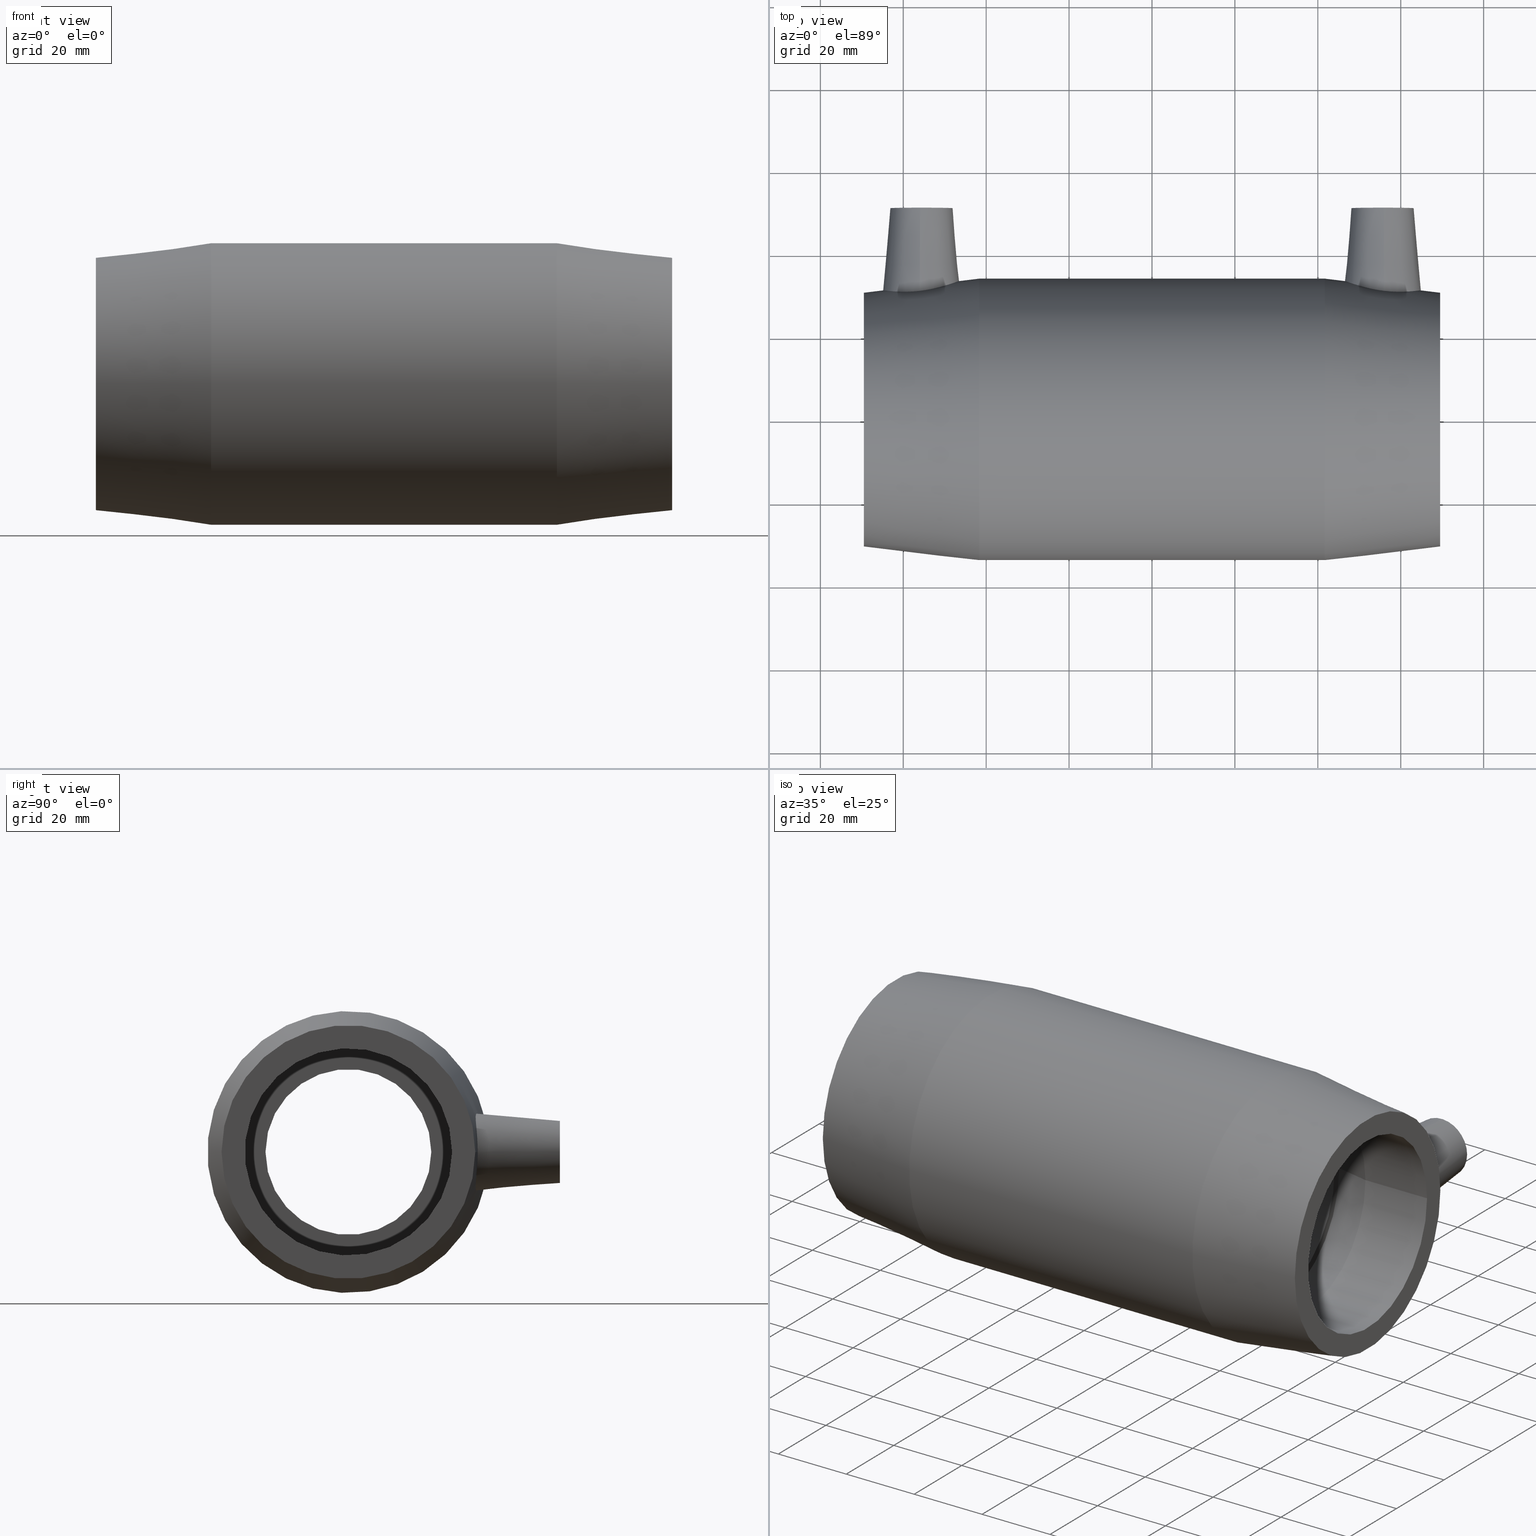
[diagram: canonical four-view strip — front | top / right | iso, engineering-drawing reading convention]
A machine part, canonical four-view strip (front | top / right | iso — engineering-drawing reading convention). The complete STEP part file that produces these views, byte-faithful:
ISO-10303-21;
HEADER;
/* Generated by software containing ST-Developer
 * from STEP Tools, Inc. (www.steptools.com) 
 */

FILE_DESCRIPTION(
/* description */ ('PLASSON LONG COUPLER 50'),
/* implementation_level */ '2;1');

FILE_NAME(
/* name */ 
'C:\\Dropbox\\KIMPROJECTS-Inventor\\99-16-3568-Processing\\ElectroFusi
on Fittings\\4901L4\\4901L4050.ipt.stp',
/* time_stamp */ '2017-11-06T09:11:06+02:00',
/* author */ ('KIM'),
/* organization */ (''),
/* preprocessor_version */ 'ST-DEVELOPER v15.6',
/* originating_system */ 'Autodesk Inventor 2015',
/* authorisation */ '');

FILE_SCHEMA (('AUTOMOTIVE_DESIGN { 1 0 10303 214 3 1 1 }'));
ENDSEC;

DATA;
#10=MECHANICAL_DESIGN_GEOMETRIC_PRESENTATION_REPRESENTATION('',(#13),#643);
#11=SHAPE_REPRESENTATION_RELATIONSHIP('SRR','None',#652,#12);
#12=ADVANCED_BREP_SHAPE_REPRESENTATION($,(#14),#642);
#13=STYLED_ITEM('',(#661),#14);
#14=MANIFOLD_SOLID_BREP('Solid1',#323);
#15=B_SPLINE_CURVE_WITH_KNOTS('',3,(#521,#522,#523,#524,#525,#526,#527,
#528,#529,#530,#531,#532,#533,#534,#535,#536,#537,#538,#539,#540,#541,#542,
#543,#544,#545,#546,#547,#548,#549,#550,#551,#552,#553,#554),
 .UNSPECIFIED.,.T.,.F.,(4,2,2,2,2,2,2,2,2,2,2,2,2,2,2,2,4),(0.,0.364856590834761,
0.729713181669521,1.08597432023197,1.44223545879442,1.79849659735688,2.15475773591933,
2.51961432675409,2.88447091758885,3.22228251719108,3.56009411679331,3.90054940818424,
4.24100469957517,4.5814599909661,4.92191528235703,5.25972688195927,5.5975384815615),
 .UNSPECIFIED.);
#16=B_SPLINE_CURVE_WITH_KNOTS('',3,(#558,#559,#560,#561,#562,#563,#564,
#565,#566,#567,#568,#569,#570,#571,#572,#573,#574,#575,#576,#577,#578,#579,
#580,#581,#582,#583,#584,#585,#586,#587,#588,#589,#590,#591),
 .UNSPECIFIED.,.T.,.F.,(4,2,2,2,2,2,2,2,2,2,2,2,2,2,2,2,4),(0.,0.337811599602233,
0.675623199204467,1.0160784905954,1.35653378198633,1.69698907337726,2.03744436476819,
2.37525596437042,2.71306756397265,3.07792415480741,3.44278074564218,3.79904188420463,
4.15530302276708,4.51156416132953,4.86782529989198,5.23268189072674,5.5975384815615),
 .UNSPECIFIED.);
#17=CONICAL_SURFACE('',#343,7.5,5.);
#18=CONICAL_SURFACE('',#346,7.5,5.);
#19=CONICAL_SURFACE('',#350,32.3,6.97276928602646);
#20=CONICAL_SURFACE('',#356,25.9635897462374,12.);
#21=CONICAL_SURFACE('',#372,25.9635897462374,12.);
#22=CONICAL_SURFACE('',#378,32.3,6.97276928602646);
#23=FACE_BOUND('',#91,.T.);
#24=FACE_BOUND('',#93,.T.);
#25=FACE_BOUND('',#95,.T.);
#26=FACE_BOUND('',#98,.T.);
#27=FACE_BOUND('',#100,.T.);
#28=FACE_BOUND('',#102,.T.);
#29=FACE_BOUND('',#104,.T.);
#30=FACE_BOUND('',#106,.T.);
#31=FACE_BOUND('',#108,.T.);
#32=FACE_BOUND('',#110,.T.);
#33=FACE_BOUND('',#112,.T.);
#34=FACE_BOUND('',#114,.T.);
#35=FACE_BOUND('',#115,.T.);
#36=FACE_BOUND('',#117,.T.);
#37=FACE_BOUND('',#119,.T.);
#38=FACE_BOUND('',#121,.T.);
#39=FACE_BOUND('',#123,.T.);
#40=FACE_BOUND('',#125,.T.);
#41=FACE_BOUND('',#127,.T.);
#42=FACE_BOUND('',#129,.T.);
#43=FACE_BOUND('',#131,.T.);
#44=FACE_BOUND('',#133,.T.);
#45=FACE_BOUND('',#135,.T.);
#46=FACE_BOUND('',#137,.T.);
#47=FACE_BOUND('',#139,.T.);
#48=FACE_BOUND('',#141,.T.);
#49=FACE_BOUND('',#143,.T.);
#50=FACE_BOUND('',#144,.T.);
#51=CYLINDRICAL_SURFACE('',#327,2.);
#52=CYLINDRICAL_SURFACE('',#329,5.);
#53=CYLINDRICAL_SURFACE('',#335,2.);
#54=CYLINDRICAL_SURFACE('',#337,5.);
#55=CYLINDRICAL_SURFACE('',#347,34.);
#56=CYLINDRICAL_SURFACE('',#354,25.);
#57=CYLINDRICAL_SURFACE('',#360,25.);
#58=CYLINDRICAL_SURFACE('',#364,20.);
#59=CYLINDRICAL_SURFACE('',#368,25.);
#60=CYLINDRICAL_SURFACE('',#374,25.);
#61=FACE_OUTER_BOUND('',#89,.T.);
#62=FACE_OUTER_BOUND('',#90,.T.);
#63=FACE_OUTER_BOUND('',#92,.T.);
#64=FACE_OUTER_BOUND('',#94,.T.);
#65=FACE_OUTER_BOUND('',#96,.T.);
#66=FACE_OUTER_BOUND('',#97,.T.);
#67=FACE_OUTER_BOUND('',#99,.T.);
#68=FACE_OUTER_BOUND('',#101,.T.);
#69=FACE_OUTER_BOUND('',#103,.T.);
#70=FACE_OUTER_BOUND('',#105,.T.);
#71=FACE_OUTER_BOUND('',#107,.T.);
#72=FACE_OUTER_BOUND('',#109,.T.);
#73=FACE_OUTER_BOUND('',#111,.T.);
#74=FACE_OUTER_BOUND('',#113,.T.);
#75=FACE_OUTER_BOUND('',#116,.T.);
#76=FACE_OUTER_BOUND('',#118,.T.);
#77=FACE_OUTER_BOUND('',#120,.T.);
#78=FACE_OUTER_BOUND('',#122,.T.);
#79=FACE_OUTER_BOUND('',#124,.T.);
#80=FACE_OUTER_BOUND('',#126,.T.);
#81=FACE_OUTER_BOUND('',#128,.T.);
#82=FACE_OUTER_BOUND('',#130,.T.);
#83=FACE_OUTER_BOUND('',#132,.T.);
#84=FACE_OUTER_BOUND('',#134,.T.);
#85=FACE_OUTER_BOUND('',#136,.T.);
#86=FACE_OUTER_BOUND('',#138,.T.);
#87=FACE_OUTER_BOUND('',#140,.T.);
#88=FACE_OUTER_BOUND('',#142,.T.);
#89=EDGE_LOOP('',(#227));
#90=EDGE_LOOP('',(#228));
#91=EDGE_LOOP('',(#229));
#92=EDGE_LOOP('',(#230));
#93=EDGE_LOOP('',(#231));
#94=EDGE_LOOP('',(#232));
#95=EDGE_LOOP('',(#233));
#96=EDGE_LOOP('',(#234));
#97=EDGE_LOOP('',(#235));
#98=EDGE_LOOP('',(#236));
#99=EDGE_LOOP('',(#237));
#100=EDGE_LOOP('',(#238));
#101=EDGE_LOOP('',(#239));
#102=EDGE_LOOP('',(#240));
#103=EDGE_LOOP('',(#241));
#104=EDGE_LOOP('',(#242));
#105=EDGE_LOOP('',(#243));
#106=EDGE_LOOP('',(#244));
#107=EDGE_LOOP('',(#245));
#108=EDGE_LOOP('',(#246));
#109=EDGE_LOOP('',(#247));
#110=EDGE_LOOP('',(#248));
#111=EDGE_LOOP('',(#249));
#112=EDGE_LOOP('',(#250));
#113=EDGE_LOOP('',(#251));
#114=EDGE_LOOP('',(#252));
#115=EDGE_LOOP('',(#253));
#116=EDGE_LOOP('',(#254));
#117=EDGE_LOOP('',(#255));
#118=EDGE_LOOP('',(#256));
#119=EDGE_LOOP('',(#257));
#120=EDGE_LOOP('',(#258));
#121=EDGE_LOOP('',(#259));
#122=EDGE_LOOP('',(#260));
#123=EDGE_LOOP('',(#261));
#124=EDGE_LOOP('',(#262));
#125=EDGE_LOOP('',(#263));
#126=EDGE_LOOP('',(#264));
#127=EDGE_LOOP('',(#265));
#128=EDGE_LOOP('',(#266));
#129=EDGE_LOOP('',(#267));
#130=EDGE_LOOP('',(#268));
#131=EDGE_LOOP('',(#269));
#132=EDGE_LOOP('',(#270));
#133=EDGE_LOOP('',(#271));
#134=EDGE_LOOP('',(#272));
#135=EDGE_LOOP('',(#273));
#136=EDGE_LOOP('',(#274));
#137=EDGE_LOOP('',(#275));
#138=EDGE_LOOP('',(#276));
#139=EDGE_LOOP('',(#277));
#140=EDGE_LOOP('',(#278));
#141=EDGE_LOOP('',(#279));
#142=EDGE_LOOP('',(#280));
#143=EDGE_LOOP('',(#281));
#144=EDGE_LOOP('',(#282));
#145=CIRCLE('',#326,2.);
#146=CIRCLE('',#328,2.);
#147=CIRCLE('',#330,5.);
#148=CIRCLE('',#331,5.);
#149=CIRCLE('',#334,2.);
#150=CIRCLE('',#336,2.);
#151=CIRCLE('',#338,5.);
#152=CIRCLE('',#339,5.);
#153=CIRCLE('',#342,7.5);
#154=CIRCLE('',#344,7.5);
#155=CIRCLE('',#348,34.);
#156=CIRCLE('',#349,34.);
#157=CIRCLE('',#351,30.6);
#158=CIRCLE('',#353,25.);
#159=CIRCLE('',#355,25.);
#160=CIRCLE('',#357,26.9271794924749);
#161=CIRCLE('',#359,25.);
#162=CIRCLE('',#361,25.);
#163=CIRCLE('',#363,20.);
#164=CIRCLE('',#365,20.);
#165=CIRCLE('',#367,25.);
#166=CIRCLE('',#369,25.);
#167=CIRCLE('',#371,26.9271794924749);
#168=CIRCLE('',#373,25.);
#169=CIRCLE('',#375,25.);
#170=CIRCLE('',#377,30.6);
#171=VERTEX_POINT('',#491);
#172=VERTEX_POINT('',#494);
#173=VERTEX_POINT('',#497);
#174=VERTEX_POINT('',#499);
#175=VERTEX_POINT('',#503);
#176=VERTEX_POINT('',#506);
#177=VERTEX_POINT('',#509);
#178=VERTEX_POINT('',#511);
#179=VERTEX_POINT('',#515);
#180=VERTEX_POINT('',#518);
#181=VERTEX_POINT('',#520);
#182=VERTEX_POINT('',#557);
#183=VERTEX_POINT('',#593);
#184=VERTEX_POINT('',#595);
#185=VERTEX_POINT('',#598);
#186=VERTEX_POINT('',#601);
#187=VERTEX_POINT('',#604);
#188=VERTEX_POINT('',#607);
#189=VERTEX_POINT('',#610);
#190=VERTEX_POINT('',#613);
#191=VERTEX_POINT('',#616);
#192=VERTEX_POINT('',#619);
#193=VERTEX_POINT('',#622);
#194=VERTEX_POINT('',#625);
#195=VERTEX_POINT('',#628);
#196=VERTEX_POINT('',#631);
#197=VERTEX_POINT('',#634);
#198=VERTEX_POINT('',#637);
#199=EDGE_CURVE('',#171,#171,#145,.T.);
#200=EDGE_CURVE('',#172,#172,#146,.T.);
#201=EDGE_CURVE('',#173,#173,#147,.T.);
#202=EDGE_CURVE('',#174,#174,#148,.T.);
#203=EDGE_CURVE('',#175,#175,#149,.T.);
#204=EDGE_CURVE('',#176,#176,#150,.T.);
#205=EDGE_CURVE('',#177,#177,#151,.T.);
#206=EDGE_CURVE('',#178,#178,#152,.T.);
#207=EDGE_CURVE('',#179,#179,#153,.T.);
#208=EDGE_CURVE('',#180,#180,#154,.T.);
#209=EDGE_CURVE('',#181,#181,#15,.T.);
#210=EDGE_CURVE('',#182,#182,#16,.T.);
#211=EDGE_CURVE('',#183,#183,#155,.T.);
#212=EDGE_CURVE('',#184,#184,#156,.T.);
#213=EDGE_CURVE('',#185,#185,#157,.T.);
#214=EDGE_CURVE('',#186,#186,#158,.T.);
#215=EDGE_CURVE('',#187,#187,#159,.T.);
#216=EDGE_CURVE('',#188,#188,#160,.T.);
#217=EDGE_CURVE('',#189,#189,#161,.T.);
#218=EDGE_CURVE('',#190,#190,#162,.T.);
#219=EDGE_CURVE('',#191,#191,#163,.T.);
#220=EDGE_CURVE('',#192,#192,#164,.T.);
#221=EDGE_CURVE('',#193,#193,#165,.T.);
#222=EDGE_CURVE('',#194,#194,#166,.T.);
#223=EDGE_CURVE('',#195,#195,#167,.T.);
#224=EDGE_CURVE('',#196,#196,#168,.T.);
#225=EDGE_CURVE('',#197,#197,#169,.T.);
#226=EDGE_CURVE('',#198,#198,#170,.T.);
#227=ORIENTED_EDGE('',*,*,#199,.F.);
#228=ORIENTED_EDGE('',*,*,#199,.T.);
#229=ORIENTED_EDGE('',*,*,#200,.F.);
#230=ORIENTED_EDGE('',*,*,#201,.F.);
#231=ORIENTED_EDGE('',*,*,#202,.F.);
#232=ORIENTED_EDGE('',*,*,#201,.T.);
#233=ORIENTED_EDGE('',*,*,#200,.T.);
#234=ORIENTED_EDGE('',*,*,#203,.F.);
#235=ORIENTED_EDGE('',*,*,#203,.T.);
#236=ORIENTED_EDGE('',*,*,#204,.T.);
#237=ORIENTED_EDGE('',*,*,#205,.T.);
#238=ORIENTED_EDGE('',*,*,#206,.F.);
#239=ORIENTED_EDGE('',*,*,#205,.F.);
#240=ORIENTED_EDGE('',*,*,#204,.F.);
#241=ORIENTED_EDGE('',*,*,#207,.F.);
#242=ORIENTED_EDGE('',*,*,#206,.T.);
#243=ORIENTED_EDGE('',*,*,#208,.F.);
#244=ORIENTED_EDGE('',*,*,#209,.F.);
#245=ORIENTED_EDGE('',*,*,#208,.T.);
#246=ORIENTED_EDGE('',*,*,#202,.T.);
#247=ORIENTED_EDGE('',*,*,#207,.T.);
#248=ORIENTED_EDGE('',*,*,#210,.F.);
#249=ORIENTED_EDGE('',*,*,#211,.F.);
#250=ORIENTED_EDGE('',*,*,#212,.T.);
#251=ORIENTED_EDGE('',*,*,#213,.F.);
#252=ORIENTED_EDGE('',*,*,#209,.T.);
#253=ORIENTED_EDGE('',*,*,#211,.T.);
#254=ORIENTED_EDGE('',*,*,#213,.T.);
#255=ORIENTED_EDGE('',*,*,#214,.F.);
#256=ORIENTED_EDGE('',*,*,#215,.F.);
#257=ORIENTED_EDGE('',*,*,#214,.T.);
#258=ORIENTED_EDGE('',*,*,#216,.F.);
#259=ORIENTED_EDGE('',*,*,#215,.T.);
#260=ORIENTED_EDGE('',*,*,#216,.T.);
#261=ORIENTED_EDGE('',*,*,#217,.F.);
#262=ORIENTED_EDGE('',*,*,#218,.F.);
#263=ORIENTED_EDGE('',*,*,#217,.T.);
#264=ORIENTED_EDGE('',*,*,#218,.T.);
#265=ORIENTED_EDGE('',*,*,#219,.F.);
#266=ORIENTED_EDGE('',*,*,#220,.F.);
#267=ORIENTED_EDGE('',*,*,#219,.T.);
#268=ORIENTED_EDGE('',*,*,#221,.F.);
#269=ORIENTED_EDGE('',*,*,#220,.T.);
#270=ORIENTED_EDGE('',*,*,#222,.F.);
#271=ORIENTED_EDGE('',*,*,#221,.T.);
#272=ORIENTED_EDGE('',*,*,#223,.F.);
#273=ORIENTED_EDGE('',*,*,#222,.T.);
#274=ORIENTED_EDGE('',*,*,#224,.F.);
#275=ORIENTED_EDGE('',*,*,#223,.T.);
#276=ORIENTED_EDGE('',*,*,#225,.F.);
#277=ORIENTED_EDGE('',*,*,#224,.T.);
#278=ORIENTED_EDGE('',*,*,#226,.F.);
#279=ORIENTED_EDGE('',*,*,#225,.T.);
#280=ORIENTED_EDGE('',*,*,#212,.F.);
#281=ORIENTED_EDGE('',*,*,#210,.T.);
#282=ORIENTED_EDGE('',*,*,#226,.T.);
#283=PLANE('',#325);
#284=PLANE('',#332);
#285=PLANE('',#333);
#286=PLANE('',#340);
#287=PLANE('',#341);
#288=PLANE('',#345);
#289=PLANE('',#352);
#290=PLANE('',#358);
#291=PLANE('',#362);
#292=PLANE('',#366);
#293=PLANE('',#370);
#294=PLANE('',#376);
#295=ADVANCED_FACE('',(#61),#283,.F.);
#296=ADVANCED_FACE('',(#62,#23),#51,.T.);
#297=ADVANCED_FACE('',(#63,#24),#52,.F.);
#298=ADVANCED_FACE('',(#64,#25),#284,.F.);
#299=ADVANCED_FACE('',(#65),#285,.T.);
#300=ADVANCED_FACE('',(#66,#26),#53,.T.);
#301=ADVANCED_FACE('',(#67,#27),#54,.F.);
#302=ADVANCED_FACE('',(#68,#28),#286,.T.);
#303=ADVANCED_FACE('',(#69,#29),#287,.T.);
#304=ADVANCED_FACE('',(#70,#30),#17,.T.);
#305=ADVANCED_FACE('',(#71,#31),#288,.F.);
#306=ADVANCED_FACE('',(#72,#32),#18,.T.);
#307=ADVANCED_FACE('',(#73,#33),#55,.T.);
#308=ADVANCED_FACE('',(#74,#34,#35),#19,.T.);
#309=ADVANCED_FACE('',(#75,#36),#289,.T.);
#310=ADVANCED_FACE('',(#76,#37),#56,.F.);
#311=ADVANCED_FACE('',(#77,#38),#20,.F.);
#312=ADVANCED_FACE('',(#78,#39),#290,.T.);
#313=ADVANCED_FACE('',(#79,#40),#57,.F.);
#314=ADVANCED_FACE('',(#80,#41),#291,.T.);
#315=ADVANCED_FACE('',(#81,#42),#58,.F.);
#316=ADVANCED_FACE('',(#82,#43),#292,.T.);
#317=ADVANCED_FACE('',(#83,#44),#59,.F.);
#318=ADVANCED_FACE('',(#84,#45),#293,.T.);
#319=ADVANCED_FACE('',(#85,#46),#21,.F.);
#320=ADVANCED_FACE('',(#86,#47),#60,.F.);
#321=ADVANCED_FACE('',(#87,#48),#294,.T.);
#322=ADVANCED_FACE('',(#88,#49,#50),#22,.T.);
#323=CLOSED_SHELL('',(#295,#296,#297,#298,#299,#300,#301,#302,#303,#304,
#305,#306,#307,#308,#309,#310,#311,#312,#313,#314,#315,#316,#317,#318,#319,
#320,#321,#322));
#324=AXIS2_PLACEMENT_3D('placement',#489,#379,#380);
#325=AXIS2_PLACEMENT_3D('',#490,#381,#382);
#326=AXIS2_PLACEMENT_3D('',#492,#383,#384);
#327=AXIS2_PLACEMENT_3D('',#493,#385,#386);
#328=AXIS2_PLACEMENT_3D('',#495,#387,#388);
#329=AXIS2_PLACEMENT_3D('',#496,#389,#390);
#330=AXIS2_PLACEMENT_3D('',#498,#391,#392);
#331=AXIS2_PLACEMENT_3D('',#500,#393,#394);
#332=AXIS2_PLACEMENT_3D('',#501,#395,#396);
#333=AXIS2_PLACEMENT_3D('',#502,#397,#398);
#334=AXIS2_PLACEMENT_3D('',#504,#399,#400);
#335=AXIS2_PLACEMENT_3D('',#505,#401,#402);
#336=AXIS2_PLACEMENT_3D('',#507,#403,#404);
#337=AXIS2_PLACEMENT_3D('',#508,#405,#406);
#338=AXIS2_PLACEMENT_3D('',#510,#407,#408);
#339=AXIS2_PLACEMENT_3D('',#512,#409,#410);
#340=AXIS2_PLACEMENT_3D('',#513,#411,#412);
#341=AXIS2_PLACEMENT_3D('',#514,#413,#414);
#342=AXIS2_PLACEMENT_3D('',#516,#415,#416);
#343=AXIS2_PLACEMENT_3D('',#517,#417,#418);
#344=AXIS2_PLACEMENT_3D('',#519,#419,#420);
#345=AXIS2_PLACEMENT_3D('',#555,#421,#422);
#346=AXIS2_PLACEMENT_3D('',#556,#423,#424);
#347=AXIS2_PLACEMENT_3D('',#592,#425,#426);
#348=AXIS2_PLACEMENT_3D('',#594,#427,#428);
#349=AXIS2_PLACEMENT_3D('',#596,#429,#430);
#350=AXIS2_PLACEMENT_3D('',#597,#431,#432);
#351=AXIS2_PLACEMENT_3D('',#599,#433,#434);
#352=AXIS2_PLACEMENT_3D('',#600,#435,#436);
#353=AXIS2_PLACEMENT_3D('',#602,#437,#438);
#354=AXIS2_PLACEMENT_3D('',#603,#439,#440);
#355=AXIS2_PLACEMENT_3D('',#605,#441,#442);
#356=AXIS2_PLACEMENT_3D('',#606,#443,#444);
#357=AXIS2_PLACEMENT_3D('',#608,#445,#446);
#358=AXIS2_PLACEMENT_3D('',#609,#447,#448);
#359=AXIS2_PLACEMENT_3D('',#611,#449,#450);
#360=AXIS2_PLACEMENT_3D('',#612,#451,#452);
#361=AXIS2_PLACEMENT_3D('',#614,#453,#454);
#362=AXIS2_PLACEMENT_3D('',#615,#455,#456);
#363=AXIS2_PLACEMENT_3D('',#617,#457,#458);
#364=AXIS2_PLACEMENT_3D('',#618,#459,#460);
#365=AXIS2_PLACEMENT_3D('',#620,#461,#462);
#366=AXIS2_PLACEMENT_3D('',#621,#463,#464);
#367=AXIS2_PLACEMENT_3D('',#623,#465,#466);
#368=AXIS2_PLACEMENT_3D('',#624,#467,#468);
#369=AXIS2_PLACEMENT_3D('',#626,#469,#470);
#370=AXIS2_PLACEMENT_3D('',#627,#471,#472);
#371=AXIS2_PLACEMENT_3D('',#629,#473,#474);
#372=AXIS2_PLACEMENT_3D('',#630,#475,#476);
#373=AXIS2_PLACEMENT_3D('',#632,#477,#478);
#374=AXIS2_PLACEMENT_3D('',#633,#479,#480);
#375=AXIS2_PLACEMENT_3D('',#635,#481,#482);
#376=AXIS2_PLACEMENT_3D('',#636,#483,#484);
#377=AXIS2_PLACEMENT_3D('',#638,#485,#486);
#378=AXIS2_PLACEMENT_3D('',#639,#487,#488);
#379=DIRECTION('axis',(0.,0.,1.));
#380=DIRECTION('refdir',(1.,0.,0.));
#381=DIRECTION('center_axis',(0.,-1.,0.));
#382=DIRECTION('ref_axis',(0.,0.,1.));
#383=DIRECTION('center_axis',(0.,-1.,0.));
#384=DIRECTION('ref_axis',(1.,0.,0.));
#385=DIRECTION('center_axis',(0.,1.,0.));
#386=DIRECTION('ref_axis',(1.,0.,0.));
#387=DIRECTION('center_axis',(0.,-1.,0.));
#388=DIRECTION('ref_axis',(1.,0.,0.));
#389=DIRECTION('center_axis',(0.,1.,0.));
#390=DIRECTION('ref_axis',(1.,0.,0.));
#391=DIRECTION('center_axis',(0.,1.,0.));
#392=DIRECTION('ref_axis',(1.,0.,0.));
#393=DIRECTION('center_axis',(0.,-1.,0.));
#394=DIRECTION('ref_axis',(1.,0.,0.));
#395=DIRECTION('center_axis',(0.,-1.,0.));
#396=DIRECTION('ref_axis',(0.,0.,1.));
#397=DIRECTION('center_axis',(0.,1.,0.));
#398=DIRECTION('ref_axis',(0.,0.,1.));
#399=DIRECTION('center_axis',(0.,-1.,0.));
#400=DIRECTION('ref_axis',(-1.,0.,0.));
#401=DIRECTION('center_axis',(0.,-1.,0.));
#402=DIRECTION('ref_axis',(-1.,0.,0.));
#403=DIRECTION('center_axis',(0.,1.,0.));
#404=DIRECTION('ref_axis',(-1.,0.,0.));
#405=DIRECTION('center_axis',(0.,-1.,0.));
#406=DIRECTION('ref_axis',(-1.,0.,0.));
#407=DIRECTION('center_axis',(0.,-1.,0.));
#408=DIRECTION('ref_axis',(-1.,0.,0.));
#409=DIRECTION('center_axis',(0.,-1.,0.));
#410=DIRECTION('ref_axis',(-1.,0.,0.));
#411=DIRECTION('center_axis',(0.,1.,0.));
#412=DIRECTION('ref_axis',(0.,0.,1.));
#413=DIRECTION('center_axis',(0.,1.,0.));
#414=DIRECTION('ref_axis',(0.,0.,1.));
#415=DIRECTION('center_axis',(0.,-1.,0.));
#416=DIRECTION('ref_axis',(1.,0.,0.));
#417=DIRECTION('center_axis',(0.,-1.,0.));
#418=DIRECTION('ref_axis',(-1.,0.,0.));
#419=DIRECTION('center_axis',(0.,1.,0.));
#420=DIRECTION('ref_axis',(-1.,0.,0.));
#421=DIRECTION('center_axis',(0.,-1.,0.));
#422=DIRECTION('ref_axis',(0.,0.,1.));
#423=DIRECTION('center_axis',(0.,-1.,0.));
#424=DIRECTION('ref_axis',(1.,0.,0.));
#425=DIRECTION('center_axis',(1.,0.,0.));
#426=DIRECTION('ref_axis',(0.,1.,0.));
#427=DIRECTION('center_axis',(1.,0.,0.));
#428=DIRECTION('ref_axis',(0.,0.,-1.));
#429=DIRECTION('center_axis',(1.,0.,0.));
#430=DIRECTION('ref_axis',(0.,0.,-1.));
#431=DIRECTION('center_axis',(-1.,0.,0.));
#432=DIRECTION('ref_axis',(0.,1.,0.));
#433=DIRECTION('center_axis',(1.,0.,0.));
#434=DIRECTION('ref_axis',(0.,0.,-1.));
#435=DIRECTION('center_axis',(1.,0.,0.));
#436=DIRECTION('ref_axis',(0.,0.,-1.));
#437=DIRECTION('center_axis',(1.,0.,0.));
#438=DIRECTION('ref_axis',(0.,0.,-1.));
#439=DIRECTION('center_axis',(1.,0.,0.));
#440=DIRECTION('ref_axis',(0.,1.,0.));
#441=DIRECTION('center_axis',(1.,0.,0.));
#442=DIRECTION('ref_axis',(0.,0.,-1.));
#443=DIRECTION('center_axis',(-1.,0.,0.));
#444=DIRECTION('ref_axis',(0.,1.,0.));
#445=DIRECTION('center_axis',(1.,0.,0.));
#446=DIRECTION('ref_axis',(0.,0.,-1.));
#447=DIRECTION('center_axis',(1.,0.,0.));
#448=DIRECTION('ref_axis',(0.,0.,-1.));
#449=DIRECTION('center_axis',(1.,0.,0.));
#450=DIRECTION('ref_axis',(0.,0.,-1.));
#451=DIRECTION('center_axis',(1.,0.,0.));
#452=DIRECTION('ref_axis',(0.,1.,0.));
#453=DIRECTION('center_axis',(1.,0.,0.));
#454=DIRECTION('ref_axis',(0.,0.,-1.));
#455=DIRECTION('center_axis',(1.,0.,0.));
#456=DIRECTION('ref_axis',(0.,0.,-1.));
#457=DIRECTION('center_axis',(1.,0.,0.));
#458=DIRECTION('ref_axis',(0.,0.,-1.));
#459=DIRECTION('center_axis',(1.,0.,0.));
#460=DIRECTION('ref_axis',(0.,1.,0.));
#461=DIRECTION('center_axis',(1.,0.,0.));
#462=DIRECTION('ref_axis',(0.,0.,-1.));
#463=DIRECTION('center_axis',(-1.,0.,0.));
#464=DIRECTION('ref_axis',(0.,0.,1.));
#465=DIRECTION('center_axis',(1.,0.,0.));
#466=DIRECTION('ref_axis',(0.,0.,-1.));
#467=DIRECTION('center_axis',(1.,0.,0.));
#468=DIRECTION('ref_axis',(0.,1.,0.));
#469=DIRECTION('center_axis',(1.,0.,0.));
#470=DIRECTION('ref_axis',(0.,0.,-1.));
#471=DIRECTION('center_axis',(-1.,0.,0.));
#472=DIRECTION('ref_axis',(0.,0.,1.));
#473=DIRECTION('center_axis',(1.,0.,0.));
#474=DIRECTION('ref_axis',(0.,0.,-1.));
#475=DIRECTION('center_axis',(1.,0.,0.));
#476=DIRECTION('ref_axis',(0.,1.,0.));
#477=DIRECTION('center_axis',(1.,0.,0.));
#478=DIRECTION('ref_axis',(0.,0.,-1.));
#479=DIRECTION('center_axis',(1.,0.,0.));
#480=DIRECTION('ref_axis',(0.,1.,0.));
#481=DIRECTION('center_axis',(1.,0.,0.));
#482=DIRECTION('ref_axis',(0.,0.,-1.));
#483=DIRECTION('center_axis',(-1.,0.,0.));
#484=DIRECTION('ref_axis',(0.,0.,1.));
#485=DIRECTION('center_axis',(1.,0.,0.));
#486=DIRECTION('ref_axis',(0.,0.,-1.));
#487=DIRECTION('center_axis',(1.,0.,0.));
#488=DIRECTION('ref_axis',(0.,1.,0.));
#489=CARTESIAN_POINT('',(0.,0.,0.));
#490=CARTESIAN_POINT('Origin',(55.6,48.,0.));
#491=CARTESIAN_POINT('',(53.6,48.,-2.44929359829471E-16));
#492=CARTESIAN_POINT('Origin',(55.6,48.,0.));
#493=CARTESIAN_POINT('Origin',(55.6,51.,0.));
#494=CARTESIAN_POINT('',(53.6,37.,-2.44929359829471E-16));
#495=CARTESIAN_POINT('Origin',(55.6,37.,0.));
#496=CARTESIAN_POINT('Origin',(55.6,51.,0.));
#497=CARTESIAN_POINT('',(50.6,37.,-6.12323399573677E-16));
#498=CARTESIAN_POINT('Origin',(55.6,37.,0.));
#499=CARTESIAN_POINT('',(50.6,51.,-6.12323399573677E-16));
#500=CARTESIAN_POINT('Origin',(55.6,51.,0.));
#501=CARTESIAN_POINT('Origin',(55.6,37.,-9.25185853854297E-17));
#502=CARTESIAN_POINT('Origin',(-55.6,48.,0.));
#503=CARTESIAN_POINT('',(-53.6,48.,-2.44929359829471E-16));
#504=CARTESIAN_POINT('Origin',(-55.6,48.,0.));
#505=CARTESIAN_POINT('Origin',(-55.6,51.,0.));
#506=CARTESIAN_POINT('',(-53.6,37.,-2.44929359829471E-16));
#507=CARTESIAN_POINT('Origin',(-55.6,37.,0.));
#508=CARTESIAN_POINT('Origin',(-55.6,51.,0.));
#509=CARTESIAN_POINT('',(-50.6,37.,-6.12323399573677E-16));
#510=CARTESIAN_POINT('Origin',(-55.6,37.,0.));
#511=CARTESIAN_POINT('',(-50.6,51.,-6.12323399573677E-16));
#512=CARTESIAN_POINT('Origin',(-55.6,51.,0.));
#513=CARTESIAN_POINT('Origin',(-55.6,37.,-9.25185853854297E-17));
#514=CARTESIAN_POINT('Origin',(-55.6,51.,1.2335811384724E-16));
#515=CARTESIAN_POINT('',(-63.1,51.,9.18485099360515E-16));
#516=CARTESIAN_POINT('Origin',(-55.6,51.,0.));
#517=CARTESIAN_POINT('Origin',(55.6,51.,0.));
#518=CARTESIAN_POINT('',(63.1,51.,9.18485099360515E-16));
#519=CARTESIAN_POINT('Origin',(55.6,51.,0.));
#520=CARTESIAN_POINT('',(56.0193723640627,30.8937668489756,9.2495652426104));
#521=CARTESIAN_POINT('Ctrl Pts',(56.0193723640628,30.8937668489755,9.24956524261039));
#522=CARTESIAN_POINT('Ctrl Pts',(54.8121787079285,31.0352059819469,9.29191198830419));
#523=CARTESIAN_POINT('Ctrl Pts',(53.5349825359445,31.264864936031,9.08010451579439));
#524=CARTESIAN_POINT('Ctrl Pts',(51.196498220514,31.8151913905117,8.15080568234896));
#525=CARTESIAN_POINT('Ctrl Pts',(50.1339402128853,32.1313570763322,7.43384981248541));
#526=CARTESIAN_POINT('Ctrl Pts',(48.4743767580176,32.6748035454698,5.78205907933334));
#527=CARTESIAN_POINT('Ctrl Pts',(47.7576175647788,32.9397514985168,4.74260902999342));
#528=CARTESIAN_POINT('Ctrl Pts',(46.8004727373702,33.3067315305941,2.44573011119199));
#529=CARTESIAN_POINT('Ctrl Pts',(46.5606831557212,33.4055279593722,1.1875371285415));
#530=CARTESIAN_POINT('Ctrl Pts',(46.5606831557212,33.4055279593722,-1.1875371285415));
#531=CARTESIAN_POINT('Ctrl Pts',(46.8004727373702,33.3067315305941,-2.44573011119199));
#532=CARTESIAN_POINT('Ctrl Pts',(47.7576175647788,32.9397514985168,-4.74260902999342));
#533=CARTESIAN_POINT('Ctrl Pts',(48.4743767580176,32.6748035454698,-5.78205907933334));
#534=CARTESIAN_POINT('Ctrl Pts',(50.1339402128853,32.1313570763322,-7.43384981248541));
#535=CARTESIAN_POINT('Ctrl Pts',(51.196498220514,31.8151913905117,-8.15080568234896));
#536=CARTESIAN_POINT('Ctrl Pts',(53.5349825359445,31.264864936031,-9.08010451579439));
#537=CARTESIAN_POINT('Ctrl Pts',(54.8121787079285,31.0352059819469,-9.29191198830419));
#538=CARTESIAN_POINT('Ctrl Pts',(57.1370828022253,30.7628118903544,-9.2103574490276));
#539=CARTESIAN_POINT('Ctrl Pts',(58.3269819819246,30.6925451678915,-8.94691583218011));
#540=CARTESIAN_POINT('Ctrl Pts',(60.5049146725895,30.6869078098578,-7.9645901513814));
#541=CARTESIAN_POINT('Ctrl Pts',(61.4930091488721,30.7474442654757,-7.24586901413925));
#542=CARTESIAN_POINT('Ctrl Pts',(63.0501510941485,30.8936613098227,-5.613217340546));
#543=CARTESIAN_POINT('Ctrl Pts',(63.7239766369651,30.9889930863502,-4.58579673717621));
#544=CARTESIAN_POINT('Ctrl Pts',(64.6163639991191,31.1290599916174,-2.34672905226111));
#545=CARTESIAN_POINT('Ctrl Pts',(64.8348514015949,31.170557742251,-1.1348509713031));
#546=CARTESIAN_POINT('Ctrl Pts',(64.8348514015949,31.170557742251,1.1348509713031));
#547=CARTESIAN_POINT('Ctrl Pts',(64.6163639991191,31.1290599916174,2.34672905226111));
#548=CARTESIAN_POINT('Ctrl Pts',(63.7239766369651,30.9889930863502,4.5857967371762));
#549=CARTESIAN_POINT('Ctrl Pts',(63.0501510941485,30.8936613098227,5.613217340546));
#550=CARTESIAN_POINT('Ctrl Pts',(61.4930091488721,30.7474442654757,7.24586901413925));
#551=CARTESIAN_POINT('Ctrl Pts',(60.5049146725895,30.6869078098578,7.96459015138139));
#552=CARTESIAN_POINT('Ctrl Pts',(58.3269819819247,30.6925451678915,8.94691583218011));
#553=CARTESIAN_POINT('Ctrl Pts',(57.1370828022253,30.7628118903544,9.2103574490276));
#554=CARTESIAN_POINT('Ctrl Pts',(56.0193723640628,30.8937668489755,9.2495652426104));
#555=CARTESIAN_POINT('Origin',(55.6,51.,1.2335811384724E-16));
#556=CARTESIAN_POINT('Origin',(-55.6,51.,0.));
#557=CARTESIAN_POINT('',(-56.0193723640627,30.8937668489756,9.2495652426104));
#558=CARTESIAN_POINT('Ctrl Pts',(-56.0193723640628,30.8937668489755,9.2495652426104));
#559=CARTESIAN_POINT('Ctrl Pts',(-57.1370828022253,30.7628118903544,9.2103574490276));
#560=CARTESIAN_POINT('Ctrl Pts',(-58.3269819819246,30.6925451678915,8.94691583218011));
#561=CARTESIAN_POINT('Ctrl Pts',(-60.5049146725895,30.6869078098578,7.9645901513814));
#562=CARTESIAN_POINT('Ctrl Pts',(-61.4930091488721,30.7474442654757,7.24586901413925));
#563=CARTESIAN_POINT('Ctrl Pts',(-63.0501510941485,30.8936613098227,5.613217340546));
#564=CARTESIAN_POINT('Ctrl Pts',(-63.7239766369651,30.9889930863502,4.58579673717621));
#565=CARTESIAN_POINT('Ctrl Pts',(-64.6163639991191,31.1290599916174,2.34672905226111));
#566=CARTESIAN_POINT('Ctrl Pts',(-64.8348514015949,31.170557742251,1.1348509713031));
#567=CARTESIAN_POINT('Ctrl Pts',(-64.8348514015949,31.170557742251,-1.1348509713031));
#568=CARTESIAN_POINT('Ctrl Pts',(-64.6163639991191,31.1290599916174,-2.34672905226111));
#569=CARTESIAN_POINT('Ctrl Pts',(-63.7239766369651,30.9889930863502,-4.5857967371762));
#570=CARTESIAN_POINT('Ctrl Pts',(-63.0501510941485,30.8936613098227,-5.613217340546));
#571=CARTESIAN_POINT('Ctrl Pts',(-61.4930091488721,30.7474442654757,-7.24586901413925));
#572=CARTESIAN_POINT('Ctrl Pts',(-60.5049146725895,30.6869078098578,-7.96459015138139));
#573=CARTESIAN_POINT('Ctrl Pts',(-58.3269819819246,30.6925451678915,-8.94691583218011));
#574=CARTESIAN_POINT('Ctrl Pts',(-57.1370828022253,30.7628118903544,-9.2103574490276));
#575=CARTESIAN_POINT('Ctrl Pts',(-54.8121787079285,31.0352059819469,-9.29191198830419));
#576=CARTESIAN_POINT('Ctrl Pts',(-53.5349825359445,31.264864936031,-9.08010451579439));
#577=CARTESIAN_POINT('Ctrl Pts',(-51.1964982205141,31.8151913905117,-8.15080568234896));
#578=CARTESIAN_POINT('Ctrl Pts',(-50.1339402128853,32.1313570763322,-7.43384981248541));
#579=CARTESIAN_POINT('Ctrl Pts',(-48.4743767580176,32.6748035454698,-5.78205907933334));
#580=CARTESIAN_POINT('Ctrl Pts',(-47.7576175647788,32.9397514985168,-4.74260902999342));
#581=CARTESIAN_POINT('Ctrl Pts',(-46.8004727373702,33.3067315305941,-2.445730111192));
#582=CARTESIAN_POINT('Ctrl Pts',(-46.5606831557212,33.4055279593722,-1.18753712854151));
#583=CARTESIAN_POINT('Ctrl Pts',(-46.5606831557212,33.4055279593722,1.1875371285415));
#584=CARTESIAN_POINT('Ctrl Pts',(-46.8004727373702,33.3067315305941,2.44573011119199));
#585=CARTESIAN_POINT('Ctrl Pts',(-47.7576175647788,32.9397514985168,4.74260902999342));
#586=CARTESIAN_POINT('Ctrl Pts',(-48.4743767580176,32.6748035454698,5.78205907933333));
#587=CARTESIAN_POINT('Ctrl Pts',(-50.1339402128853,32.1313570763322,7.43384981248541));
#588=CARTESIAN_POINT('Ctrl Pts',(-51.196498220514,31.8151913905117,8.15080568234896));
#589=CARTESIAN_POINT('Ctrl Pts',(-53.5349825359445,31.264864936031,9.08010451579439));
#590=CARTESIAN_POINT('Ctrl Pts',(-54.8121787079285,31.0352059819469,9.29191198830419));
#591=CARTESIAN_POINT('Ctrl Pts',(-56.0193723640628,30.8937668489755,9.24956524261039));
#592=CARTESIAN_POINT('Origin',(0.,0.,0.));
#593=CARTESIAN_POINT('',(41.7,34.,0.));
#594=CARTESIAN_POINT('Origin',(41.7,0.,0.));
#595=CARTESIAN_POINT('',(-41.7,34.,0.));
#596=CARTESIAN_POINT('Origin',(-41.7,0.,0.));
#597=CARTESIAN_POINT('Origin',(55.6,0.,0.));
#598=CARTESIAN_POINT('',(69.5,30.6,0.));
#599=CARTESIAN_POINT('Origin',(69.5,0.,0.));
#600=CARTESIAN_POINT('Origin',(69.5,25.,0.));
#601=CARTESIAN_POINT('',(69.5,25.,0.));
#602=CARTESIAN_POINT('Origin',(69.5,0.,0.));
#603=CARTESIAN_POINT('Origin',(60.4333333333333,0.,0.));
#604=CARTESIAN_POINT('',(51.3666666666667,25.,0.));
#605=CARTESIAN_POINT('Origin',(51.3666666666667,0.,0.));
#606=CARTESIAN_POINT('Origin',(46.8333333333333,0.,0.));
#607=CARTESIAN_POINT('',(42.3,26.9271794924749,0.));
#608=CARTESIAN_POINT('Origin',(42.3,0.,0.));
#609=CARTESIAN_POINT('Origin',(42.3,25.,0.));
#610=CARTESIAN_POINT('',(42.3,25.,0.));
#611=CARTESIAN_POINT('Origin',(42.3,0.,0.));
#612=CARTESIAN_POINT('Origin',(21.9,0.,0.));
#613=CARTESIAN_POINT('',(1.5,25.,0.));
#614=CARTESIAN_POINT('Origin',(1.5,0.,0.));
#615=CARTESIAN_POINT('Origin',(1.5,20.,0.));
#616=CARTESIAN_POINT('',(1.5,20.,0.));
#617=CARTESIAN_POINT('Origin',(1.5,0.,0.));
#618=CARTESIAN_POINT('Origin',(0.,0.,0.));
#619=CARTESIAN_POINT('',(-1.5,20.,0.));
#620=CARTESIAN_POINT('Origin',(-1.5,0.,0.));
#621=CARTESIAN_POINT('Origin',(-1.5,25.,0.));
#622=CARTESIAN_POINT('',(-1.5,25.,0.));
#623=CARTESIAN_POINT('Origin',(-1.5,0.,0.));
#624=CARTESIAN_POINT('Origin',(-21.9,0.,0.));
#625=CARTESIAN_POINT('',(-42.3,25.,0.));
#626=CARTESIAN_POINT('Origin',(-42.3,0.,0.));
#627=CARTESIAN_POINT('Origin',(-42.3,26.9271794924749,0.));
#628=CARTESIAN_POINT('',(-42.3,26.9271794924749,0.));
#629=CARTESIAN_POINT('Origin',(-42.3,0.,0.));
#630=CARTESIAN_POINT('Origin',(-46.8333333333333,0.,0.));
#631=CARTESIAN_POINT('',(-51.3666666666667,25.,0.));
#632=CARTESIAN_POINT('Origin',(-51.3666666666667,0.,0.));
#633=CARTESIAN_POINT('Origin',(-60.4333333333333,0.,0.));
#634=CARTESIAN_POINT('',(-69.5,25.,0.));
#635=CARTESIAN_POINT('Origin',(-69.5,0.,0.));
#636=CARTESIAN_POINT('Origin',(-69.5,30.6,0.));
#637=CARTESIAN_POINT('',(-69.5,30.6,0.));
#638=CARTESIAN_POINT('Origin',(-69.5,0.,0.));
#639=CARTESIAN_POINT('Origin',(-55.6,0.,0.));
#640=UNCERTAINTY_MEASURE_WITH_UNIT(LENGTH_MEASURE(0.01),#644,
'DISTANCE_ACCURACY_VALUE',
'Maximum model space distance between geometric entities at asserted c
onnectivities');
#641=UNCERTAINTY_MEASURE_WITH_UNIT(LENGTH_MEASURE(1.E-6),#644,
'DISTANCE_ACCURACY_VALUE',
'Maximum model space distance between geometric entities at asserted c
onnectivities');
#642=(
GEOMETRIC_REPRESENTATION_CONTEXT(3)
GLOBAL_UNCERTAINTY_ASSIGNED_CONTEXT((#640))
GLOBAL_UNIT_ASSIGNED_CONTEXT((#644,#647,#645))
REPRESENTATION_CONTEXT('','3D')
);
#643=(
GEOMETRIC_REPRESENTATION_CONTEXT(3)
GLOBAL_UNCERTAINTY_ASSIGNED_CONTEXT((#641))
GLOBAL_UNIT_ASSIGNED_CONTEXT((#644,#647,#645))
REPRESENTATION_CONTEXT('','3D')
);
#644=(
LENGTH_UNIT()
NAMED_UNIT(*)
SI_UNIT(.MILLI.,.METRE.)
);
#645=(
NAMED_UNIT(*)
SI_UNIT($,.STERADIAN.)
SOLID_ANGLE_UNIT()
);
#646=DIMENSIONAL_EXPONENTS(0.,0.,0.,0.,0.,0.,0.);
#647=(
CONVERSION_BASED_UNIT('degree',#649)
NAMED_UNIT(#646)
PLANE_ANGLE_UNIT()
);
#648=(
NAMED_UNIT(*)
PLANE_ANGLE_UNIT()
SI_UNIT($,.RADIAN.)
);
#649=PLANE_ANGLE_MEASURE_WITH_UNIT(PLANE_ANGLE_MEASURE(0.01745329252),#648);
#650=SHAPE_DEFINITION_REPRESENTATION(#651,#652);
#651=PRODUCT_DEFINITION_SHAPE('',$,#654);
#652=SHAPE_REPRESENTATION('',(#324),#642);
#653=PRODUCT_DEFINITION_CONTEXT('part definition',#658,'design');
#654=PRODUCT_DEFINITION('4901L4050','4901L4050',#655,#653);
#655=PRODUCT_DEFINITION_FORMATION('',$,#660);
#656=PRODUCT_RELATED_PRODUCT_CATEGORY('4901L4050','4901L4050',(#660));
#657=APPLICATION_PROTOCOL_DEFINITION('international standard',
'automotive_design',2009,#658);
#658=APPLICATION_CONTEXT(
'Core Data for Automotive Mechanical Design Process');
#659=PRODUCT_CONTEXT('part definition',#658,'mechanical');
#660=PRODUCT('4901L4050','4901L4050',$,(#659));
#661=PRESENTATION_STYLE_ASSIGNMENT((#662));
#662=SURFACE_STYLE_USAGE(.BOTH.,#663);
#663=SURFACE_SIDE_STYLE($,(#664));
#664=SURFACE_STYLE_FILL_AREA(#665);
#665=FILL_AREA_STYLE($,(#666));
#666=FILL_AREA_STYLE_COLOUR($,#667);
#667=COLOUR_RGB('',0.749019607843137,0.749019607843137,0.749019607843137);
ENDSEC;
END-ISO-10303-21;
